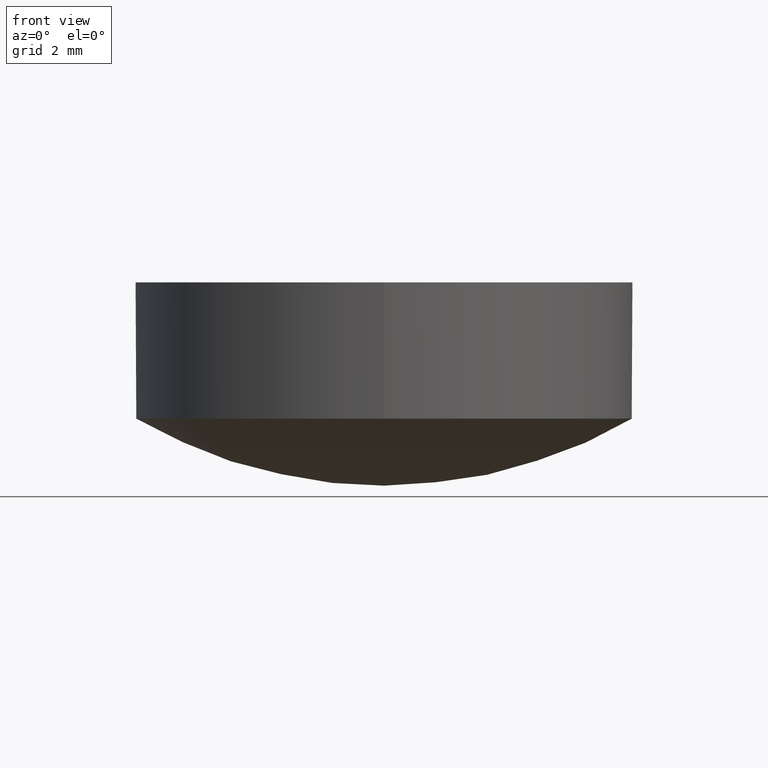
[diagram: clean part render]
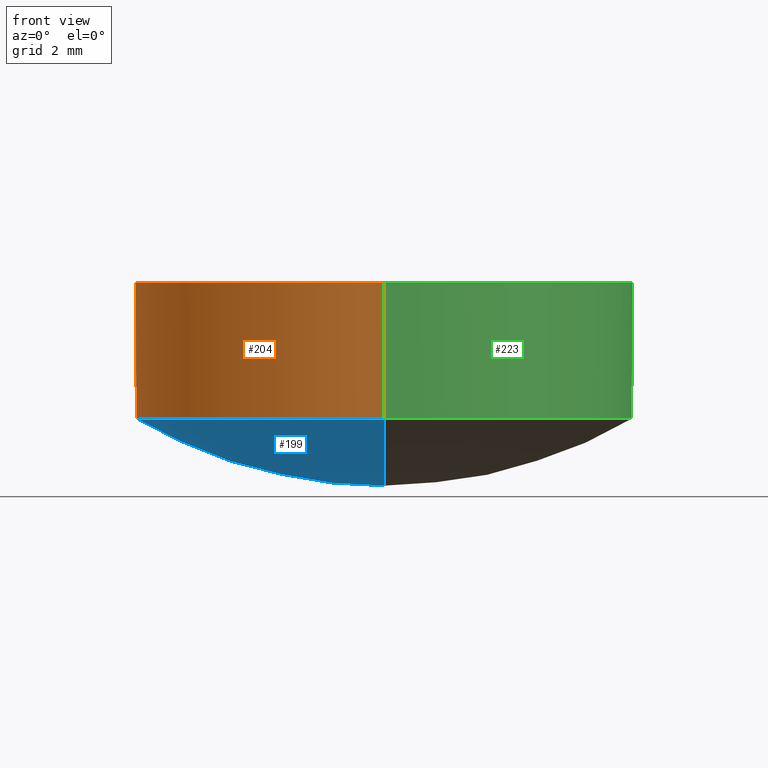
[diagram: same view with three faces highlighted in distinct colors, each labeled with its STEP entity id]
A machine part, front view with three faces highlighted in distinct colors.
Their STEP definitions:

[orange] entity #204 — the highlighted cylindrical surface (partial cylindrical patch) has radius 6.35 mm, axis along (0, -0, 1).
#37 = AXIS2_PLACEMENT_3D ( 'NONE', #46, #45, #44 ) ;
#38 = CIRCLE ( 'NONE', #37, 6.350000000000001400 ) ;
#44 = DIRECTION ( 'NONE',  ( 0.0000000000000000000, -1.000000000000000000, -1.365923996832131400E-016 ) ) ;
#45 = DIRECTION ( 'NONE',  ( 0.0000000000000000000, -1.836909530733566100E-016, 1.000000000000000000 ) ) ;
#46 = CARTESIAN_POINT ( 'NONE',  ( 0.0000000000000000000, -5.873601405913803400E-016, 4.197545283336950200 ) ) ;
#51 = DIRECTION ( 'NONE',  ( 0.0000000000000000000, -1.000000000000000000, -1.707404996040163500E-016 ) ) ;
#52 = DIRECTION ( 'NONE',  ( 0.0000000000000000000, -1.836909530733566100E-016, 1.000000000000000000 ) ) ;
#53 = AXIS2_PLACEMENT_3D ( 'NONE', #55, #52, #51 ) ;
#54 = DIRECTION ( 'NONE',  ( 0.0000000000000000000, -1.836909530733566100E-016, 1.000000000000000000 ) ) ;
#55 = CARTESIAN_POINT ( 'NONE',  ( 0.0000000000000000000, 0.0000000000000000000, 1.000000000000000000 ) ) ;
#56 = DIRECTION ( 'NONE',  ( 0.0000000000000000000, -1.000000000000000000, -1.878145495644179600E-016 ) ) ;
#57 = CYLINDRICAL_SURFACE ( 'NONE', #53, 6.350000000000003200 ) ;
#58 = AXIS2_PLACEMENT_3D ( 'NONE', #60, #54, #56 ) ;
#59 = FACE_OUTER_BOUND ( 'NONE', #205, .T. ) ;
#60 = CARTESIAN_POINT ( 'NONE',  ( 0.0000000000000000000, 5.283296928876126500E-017, 0.7123812120041507200 ) ) ;
#61 = CIRCLE ( 'NONE', #58, 6.350000000000004100 ) ;
#62 = DIRECTION ( 'NONE',  ( 0.0000000000000000000, -1.836909530733566100E-016, 1.000000000000000000 ) ) ;
#63 = VECTOR ( 'NONE', #62, 1000.000000000000000 ) ;
#64 = CARTESIAN_POINT ( 'NONE',  ( 7.776250346772099300E-016, 6.350000000000003200, 1.000000000000001100 ) ) ;
#65 = LINE ( 'NONE', #64, #63 ) ;
#66 = LINE ( 'NONE', #83, #82 ) ;
#67 = CARTESIAN_POINT ( 'NONE',  ( -7.776250346772098400E-016, -6.350000000000001400, 4.197545283336949300 ) ) ;
#73 = CARTESIAN_POINT ( 'NONE',  ( 0.0000000000000000000, 6.350000000000001400, 4.197545283336951100 ) ) ;
#81 = DIRECTION ( 'NONE',  ( 0.0000000000000000000, -1.836909530733566100E-016, 1.000000000000000000 ) ) ;
#82 = VECTOR ( 'NONE', #81, 1000.000000000000000 ) ;
#83 = CARTESIAN_POINT ( 'NONE',  ( 0.0000000000000000000, -6.350000000000003200, 0.9999999999999988900 ) ) ;
#168 = CARTESIAN_POINT ( 'NONE',  ( 0.0000000000000000000, -6.350000000000001400, 0.7123812120041489400 ) ) ;
#177 = VERTEX_POINT ( 'NONE', #178 ) ;
#178 = CARTESIAN_POINT ( 'NONE',  ( 7.776250346772096400E-016, 6.350000000000003200, 0.7123812120041527200 ) ) ;
#191 = EDGE_CURVE ( 'NONE', #213, #216, #38, .T. ) ;
#203 = EDGE_CURVE ( 'NONE', #177, #227, #61, .T. ) ;
#204 = ADVANCED_FACE ( 'NONE', ( #59 ), #57, .T. ) ;
#205 = EDGE_LOOP ( 'NONE', ( #206, #207, #208, #209 ) ) ;
#206 = ORIENTED_EDGE ( 'NONE', *, *, #212, .F. ) ;
#207 = ORIENTED_EDGE ( 'NONE', *, *, #203, .T. ) ;
#208 = ORIENTED_EDGE ( 'NONE', *, *, #218, .T. ) ;
#209 = ORIENTED_EDGE ( 'NONE', *, *, #191, .F. ) ;
#212 = EDGE_CURVE ( 'NONE', #177, #213, #65, .T. ) ;
#213 = VERTEX_POINT ( 'NONE', #73 ) ;
#216 = VERTEX_POINT ( 'NONE', #67 ) ;
#218 = EDGE_CURVE ( 'NONE', #227, #216, #66, .T. ) ;
#227 = VERTEX_POINT ( 'NONE', #168 ) ;

[blue] entity #199 — the highlighted spherical surface has radius 12.63 mm.
#14 = DIRECTION ( 'NONE',  ( 0.0000000000000000000, -1.000000000000000000, -1.373494438619799700E-016 ) ) ;
#15 = DIRECTION ( 'NONE',  ( 1.000000000000000000, 0.0000000000000000000, 0.0000000000000000000 ) ) ;
#16 = AXIS2_PLACEMENT_3D ( 'NONE', #17, #15, #14 ) ;
#17 = CARTESIAN_POINT ( 'NONE',  ( 0.0000000000000000000, 0.0000000000000000000, 11.63000000000000100 ) ) ;
#18 = SPHERICAL_SURFACE ( 'NONE', #16, 12.63000000000000100 ) ;
#27 = FACE_OUTER_BOUND ( 'NONE', #192, .T. ) ;
#29 = DIRECTION ( 'NONE',  ( 0.0000000000000000000, 0.0000000000000000000, 1.000000000000000000 ) ) ;
#30 = DIRECTION ( 'NONE',  ( -1.000000000000000000, 0.0000000000000000000, 0.0000000000000000000 ) ) ;
#31 = CARTESIAN_POINT ( 'NONE',  ( 0.0000000000000000000, 0.0000000000000000000, 11.63000000000000100 ) ) ;
#32 = DIRECTION ( 'NONE',  ( 1.000000000000000000, -1.224606353822377300E-016, -2.249491082733206400E-032 ) ) ;
#33 = AXIS2_PLACEMENT_3D ( 'NONE', #39, #32, #36 ) ;
#34 = CIRCLE ( 'NONE', #33, 12.63000000000000100 ) ;
#36 = DIRECTION ( 'NONE',  ( 1.224606353822377300E-016, 1.000000000000000000, 0.0000000000000000000 ) ) ;
#39 = CARTESIAN_POINT ( 'NONE',  ( 0.0000000000000000000, 0.0000000000000000000, 11.63000000000000100 ) ) ;
#41 = AXIS2_PLACEMENT_3D ( 'NONE', #31, #30, #29 ) ;
#42 = CIRCLE ( 'NONE', #41, 12.63000000000000300 ) ;
#43 = CARTESIAN_POINT ( 'NONE',  ( 0.0000000000000000000, 1.546677824877662800E-015, -0.9999999999999991100 ) ) ;
#54 = DIRECTION ( 'NONE',  ( 0.0000000000000000000, -1.836909530733566100E-016, 1.000000000000000000 ) ) ;
#56 = DIRECTION ( 'NONE',  ( 0.0000000000000000000, -1.000000000000000000, -1.878145495644179600E-016 ) ) ;
#58 = AXIS2_PLACEMENT_3D ( 'NONE', #60, #54, #56 ) ;
#60 = CARTESIAN_POINT ( 'NONE',  ( 0.0000000000000000000, 5.283296928876126500E-017, 0.7123812120041507200 ) ) ;
#61 = CIRCLE ( 'NONE', #58, 6.350000000000004100 ) ;
#168 = CARTESIAN_POINT ( 'NONE',  ( 0.0000000000000000000, -6.350000000000001400, 0.7123812120041489400 ) ) ;
#177 = VERTEX_POINT ( 'NONE', #178 ) ;
#178 = CARTESIAN_POINT ( 'NONE',  ( 7.776250346772096400E-016, 6.350000000000003200, 0.7123812120041527200 ) ) ;
#192 = EDGE_LOOP ( 'NONE', ( #200, #201, #202 ) ) ;
#193 = EDGE_CURVE ( 'NONE', #194, #227, #42, .T. ) ;
#194 = VERTEX_POINT ( 'NONE', #43 ) ;
#196 = EDGE_CURVE ( 'NONE', #194, #177, #34, .T. ) ;
#199 = ADVANCED_FACE ( 'NONE', ( #27 ), #18, .T. ) ;
#200 = ORIENTED_EDGE ( 'NONE', *, *, #196, .F. ) ;
#201 = ORIENTED_EDGE ( 'NONE', *, *, #193, .T. ) ;
#202 = ORIENTED_EDGE ( 'NONE', *, *, #203, .F. ) ;
#203 = EDGE_CURVE ( 'NONE', #177, #227, #61, .T. ) ;
#227 = VERTEX_POINT ( 'NONE', #168 ) ;

[green] entity #223 — the highlighted cylindrical surface (partial cylindrical patch) has radius 6.35 mm, axis along (0, -0, 1).
#10 = DIRECTION ( 'NONE',  ( 0.0000000000000000000, -1.836909530733566100E-016, 1.000000000000000000 ) ) ;
#11 = DIRECTION ( 'NONE',  ( 0.0000000000000000000, -1.000000000000000000, -1.707404996040163500E-016 ) ) ;
#48 = CARTESIAN_POINT ( 'NONE',  ( 0.0000000000000000000, 0.0000000000000000000, 1.000000000000000000 ) ) ;
#49 = AXIS2_PLACEMENT_3D ( 'NONE', #48, #10, #11 ) ;
#50 = CYLINDRICAL_SURFACE ( 'NONE', #49, 6.350000000000003200 ) ;
#62 = DIRECTION ( 'NONE',  ( 0.0000000000000000000, -1.836909530733566100E-016, 1.000000000000000000 ) ) ;
#63 = VECTOR ( 'NONE', #62, 1000.000000000000000 ) ;
#64 = CARTESIAN_POINT ( 'NONE',  ( 7.776250346772099300E-016, 6.350000000000003200, 1.000000000000001100 ) ) ;
#65 = LINE ( 'NONE', #64, #63 ) ;
#66 = LINE ( 'NONE', #83, #82 ) ;
#67 = CARTESIAN_POINT ( 'NONE',  ( -7.776250346772098400E-016, -6.350000000000001400, 4.197545283336949300 ) ) ;
#68 = DIRECTION ( 'NONE',  ( 0.0000000000000000000, -1.000000000000000000, -1.365923996832131400E-016 ) ) ;
#69 = DIRECTION ( 'NONE',  ( 0.0000000000000000000, -1.836909530733566100E-016, 1.000000000000000000 ) ) ;
#70 = CARTESIAN_POINT ( 'NONE',  ( 0.0000000000000000000, -5.873601405913803400E-016, 4.197545283336950200 ) ) ;
#71 = AXIS2_PLACEMENT_3D ( 'NONE', #70, #69, #68 ) ;
#72 = CIRCLE ( 'NONE', #71, 6.350000000000001400 ) ;
#73 = CARTESIAN_POINT ( 'NONE',  ( 0.0000000000000000000, 6.350000000000001400, 4.197545283336951100 ) ) ;
#74 = FACE_OUTER_BOUND ( 'NONE', #224, .T. ) ;
#81 = DIRECTION ( 'NONE',  ( 0.0000000000000000000, -1.836909530733566100E-016, 1.000000000000000000 ) ) ;
#82 = VECTOR ( 'NONE', #81, 1000.000000000000000 ) ;
#83 = CARTESIAN_POINT ( 'NONE',  ( 0.0000000000000000000, -6.350000000000003200, 0.9999999999999988900 ) ) ;
#84 = DIRECTION ( 'NONE',  ( 0.0000000000000000000, -1.836909530733566100E-016, 1.000000000000000000 ) ) ;
#85 = CARTESIAN_POINT ( 'NONE',  ( 0.0000000000000000000, 5.283296928876126500E-017, 0.7123812120041507200 ) ) ;
#88 = DIRECTION ( 'NONE',  ( 0.0000000000000000000, -1.000000000000000000, -1.878145495644179600E-016 ) ) ;
#168 = CARTESIAN_POINT ( 'NONE',  ( 0.0000000000000000000, -6.350000000000001400, 0.7123812120041489400 ) ) ;
#171 = AXIS2_PLACEMENT_3D ( 'NONE', #85, #84, #88 ) ;
#172 = CIRCLE ( 'NONE', #171, 6.350000000000004100 ) ;
#177 = VERTEX_POINT ( 'NONE', #178 ) ;
#178 = CARTESIAN_POINT ( 'NONE',  ( 7.776250346772096400E-016, 6.350000000000003200, 0.7123812120041527200 ) ) ;
#211 = ORIENTED_EDGE ( 'NONE', *, *, #212, .T. ) ;
#212 = EDGE_CURVE ( 'NONE', #177, #213, #65, .T. ) ;
#213 = VERTEX_POINT ( 'NONE', #73 ) ;
#214 = ORIENTED_EDGE ( 'NONE', *, *, #215, .F. ) ;
#215 = EDGE_CURVE ( 'NONE', #216, #213, #72, .T. ) ;
#216 = VERTEX_POINT ( 'NONE', #67 ) ;
#217 = ORIENTED_EDGE ( 'NONE', *, *, #218, .F. ) ;
#218 = EDGE_CURVE ( 'NONE', #227, #216, #66, .T. ) ;
#223 = ADVANCED_FACE ( 'NONE', ( #74 ), #50, .T. ) ;
#224 = EDGE_LOOP ( 'NONE', ( #225, #211, #214, #217 ) ) ;
#225 = ORIENTED_EDGE ( 'NONE', *, *, #226, .T. ) ;
#226 = EDGE_CURVE ( 'NONE', #227, #177, #172, .T. ) ;
#227 = VERTEX_POINT ( 'NONE', #168 ) ;